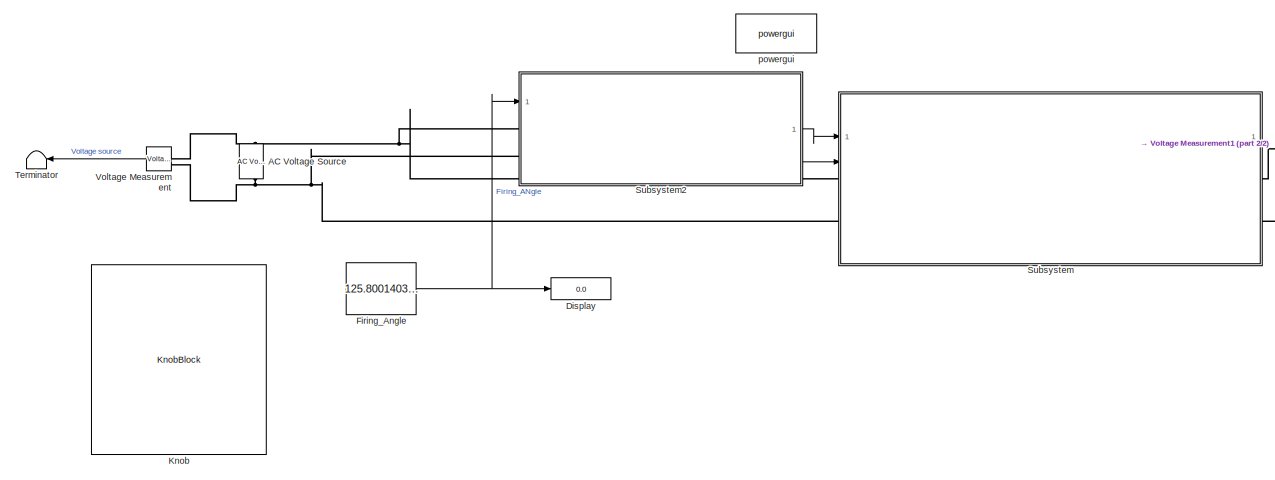
[diagram: root canvas - part 1/2, center side, full height]
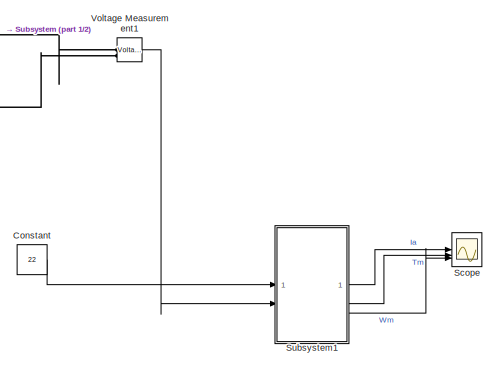
[diagram: root canvas - part 2/2, middle right region]
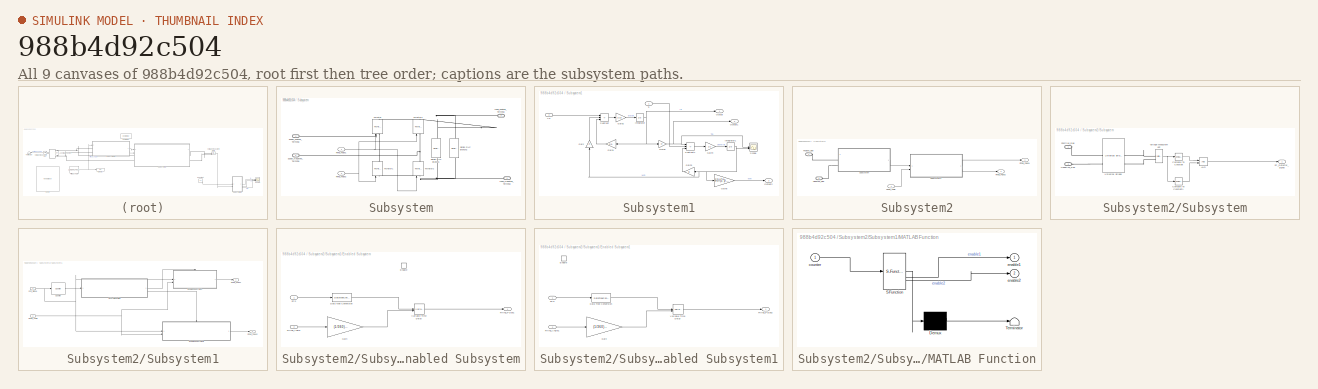
[diagram: thumbnail index - all 9 canvases of the model, root first then tree order]
MODEL slx_988b4d92c504
KIND model
CONFIG AbsTol = auto
CONFIG EnableMultiTasking = off
CONFIG FixedStep = 1e-3
CONFIG MaxStep = 1e-4
CONFIG MinStep = auto
CONFIG RelTol = 1e-3
CONFIG SampleTimeConstraint = Unconstrained
CONFIG SolverName = VariableStepAuto
CONFIG StartTime = 0.0
CONFIG StopTime = 2
WORKSPACE source: mxarray member
WORKSPACE Vm = 311.126983722
BLOCK [Reference] AC Voltage Source  REF=spsACVoltageSourceLib/AC Voltage Source
  LibrarySourceBlock = sps_lib/Sources/AC Voltage Source
  SourceBlock = spsACVoltageSourceLib/AC Voltage Source
  SourceType = AC Voltage Source
BLOCK [Constant] Constant
  Value = 22
BLOCK [Display] Display
  Decimation = 1
BLOCK [Constant] Firing_Angle
  Value = 125.8001403808594
BLOCK [KnobBlock] Knob
  ScaleMax = 180
BLOCK [Scope] Scope
  Floating = off
  NumInputPorts = 3
  ScopeSpecificationString = Simulink.scopes.TimeScopeBlockCfg('CurrentConfiguration', extmgr.ConfigurationSet(extmgr.Configuration('Core','General UI',true),extmgr.Configuration('Core','Source UI',true),extmgr.Configuration('Sources','WiredSimulink',true,'DataLoggingVariableName','ScopeData1'),extmgr.Configuration('Visuals','Time Domain',true,'SerializedDisplays',{struct('MinYLimReal','-11.45574','MaxYLimReal','103.10169','Y...<+2816ch>
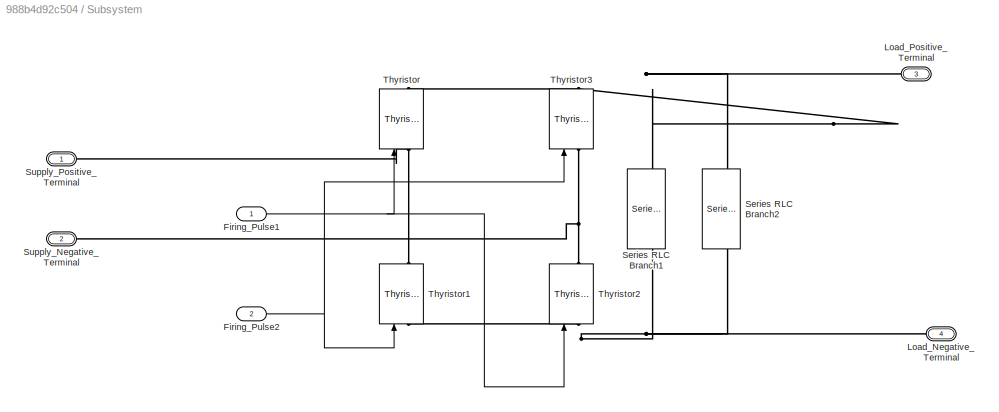
BLOCK [SubSystem] Subsystem
BLOCK [Inport] Subsystem/Firing_Pulse1
BLOCK [Inport] Subsystem/Firing_Pulse2
  Port = 2
BLOCK [PMIOPort] Subsystem/Load_Negative_Terminal
  Port = 4
  Side = Right
BLOCK [PMIOPort] Subsystem/Load_Positive_Terminal
  Port = 3
  Side = Right
BLOCK [Reference] Subsystem/Series RLC Branch1  REF=spsSeriesRLCBranchLib/Series RLC Branch
  LibrarySourceBlock = sps_lib/Passives/Series RLC Branch
  NameLocation = left
  SourceBlock = spsSeriesRLCBranchLib/Series RLC Branch
  SourceType = Series RLC Branch
BLOCK [Reference] Subsystem/Series RLC Branch2  REF=spsSeriesRLCBranchLib/Series RLC Branch
  LibrarySourceBlock = sps_lib/Passives/Series RLC Branch
  NameLocation = left
  SourceBlock = spsSeriesRLCBranchLib/Series RLC Branch
  SourceType = Series RLC Branch
BLOCK [PMIOPort] Subsystem/Supply_Negative_Terminal
  Port = 2
  Side = Left
BLOCK [PMIOPort] Subsystem/Supply_Positive_Terminal
  Side = Left
BLOCK [Reference] Subsystem/Thyristor  REF=spsThyristorLib/Thyristor
  LibrarySourceBlock = sps_lib/Power Electronics/Thyristor
  NameLocation = right
  SourceBlock = spsThyristorLib/Thyristor
  SourceType = Thyristor
BLOCK [Reference] Subsystem/Thyristor1  REF=spsThyristorLib/Thyristor
  LibrarySourceBlock = sps_lib/Power Electronics/Thyristor
  NameLocation = right
  SourceBlock = spsThyristorLib/Thyristor
  SourceType = Thyristor
BLOCK [Reference] Subsystem/Thyristor2  REF=spsThyristorLib/Thyristor
  LibrarySourceBlock = sps_lib/Power Electronics/Thyristor
  NameLocation = right
  SourceBlock = spsThyristorLib/Thyristor
  SourceType = Thyristor
BLOCK [Reference] Subsystem/Thyristor3  REF=spsThyristorLib/Thyristor
  LibrarySourceBlock = sps_lib/Power Electronics/Thyristor
  NameLocation = right
  SourceBlock = spsThyristorLib/Thyristor
  SourceType = Thyristor
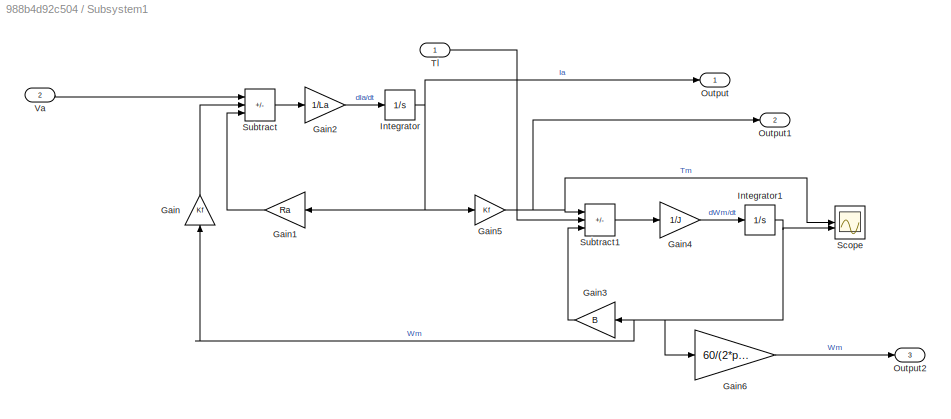
BLOCK [SubSystem] Subsystem1
BLOCK [Gain] Subsystem1/Gain
  Gain = Kf
  NameLocation = right
BLOCK [Gain] Subsystem1/Gain1
  Gain = Ra
  NameLocation = top
BLOCK [Gain] Subsystem1/Gain2
  Gain = 1/La
  NameLocation = top
BLOCK [Gain] Subsystem1/Gain3
  Gain = B
  NameLocation = top
BLOCK [Gain] Subsystem1/Gain4
  Gain = 1/J
  NameLocation = top
BLOCK [Gain] Subsystem1/Gain5
  Gain = Kf
BLOCK [Gain] Subsystem1/Gain6
  Gain = 60/(2*pi)
BLOCK [Integrator] Subsystem1/Integrator
BLOCK [Integrator] Subsystem1/Integrator1
BLOCK [Outport] Subsystem1/Output
  IconDisplay = Signal name
BLOCK [Outport] Subsystem1/Output1
  IconDisplay = Signal name
  Port = 2
BLOCK [Outport] Subsystem1/Output2
  IconDisplay = Signal name
  Port = 3
BLOCK [Scope] Subsystem1/Scope
  Floating = off
  NumInputPorts = 2
  ScopeSpecificationString = Simulink.scopes.TimeScopeBlockCfg('CurrentConfiguration', extmgr.ConfigurationSet(extmgr.Configuration('Core','General UI',true),extmgr.Configuration('Core','Source UI',true),extmgr.Configuration('Sources','WiredSimulink',true),extmgr.Configuration('Visuals','Time Domain',true,'SerializedDisplays',{struct('MinYLimReal','-79.53017','MaxYLimReal','478.98219','YLabelReal','','MinYLimMag','0.00000','M...<+2094ch>
BLOCK [Sum] Subsystem1/Subtract
  IconShape = rectangular
  Inputs = +--
BLOCK [Sum] Subsystem1/Subtract1
  IconShape = rectangular
  Inputs = +--
BLOCK [Inport] Subsystem1/Tl
BLOCK [Inport] Subsystem1/Va
  Port = 2
BLOCK [SubSystem] Subsystem2
BLOCK [Inport] Subsystem2/Firing_Angle
BLOCK [Outport] Subsystem2/Firing_Pulse1
BLOCK [Outport] Subsystem2/Firing_Pulse2
  Port = 2
BLOCK [PMIOPort] Subsystem2/Negative_side
  Port = 2
  Side = Left
BLOCK [PMIOPort] Subsystem2/Positive_side
  Side = Left
BLOCK [SubSystem] Subsystem2/Subsystem
BLOCK [Logic] Subsystem2/Subsystem/AND
  AllPortsSameDT = off
  IconShape = distinctive
  OutDataTypeStr = boolean
BLOCK [Reference] Subsystem2/Subsystem/Compare To Constant  REF=simulink/Logic and Bit
Operations/Compare
To Constant
  SourceBlock = simulink/Logic and Bit\nOperations/Compare\nTo Constant
  SourceType = Compare To Constant
BLOCK [Reference] Subsystem2/Subsystem/Compare To Constant1  REF=simulink/Logic and Bit
Operations/Compare
To Constant
  SourceBlock = simulink/Logic and Bit\nOperations/Compare\nTo Constant
  SourceType = Compare To Constant
BLOCK [PMIOPort] Subsystem2/Subsystem/Negative_side
  Port = 2
  Side = Left
BLOCK [PMIOPort] Subsystem2/Subsystem/Positive_side
  Side = Left
BLOCK [Reference] Subsystem2/Subsystem/Universal Bridge  REF=spsUniversalBridgeLib/Universal Bridge
  LibrarySourceBlock = sps_lib/Power Electronics/Universal Bridge
  SourceBlock = spsUniversalBridgeLib/Universal Bridge
  SourceType = Universal Bridge
BLOCK [Reference] Subsystem2/Subsystem/Voltage Measurement  REF=spsVoltageMeasurementLib/Voltage Measurement
  LibrarySourceBlock = sps_lib/Sensors and Measurements/Voltage Measurement
  SourceBlock = spsVoltageMeasurementLib/Voltage Measurement
  SourceType = Voltage Measurement
  UserDataPersistent = on
BLOCK [Outport] Subsystem2/Subsystem/ZC_Detector_Signal
BLOCK [SubSystem] Subsystem2/Subsystem1
BLOCK [Reference] Subsystem2/Subsystem1/Counter  REF=dspswit3/Counter
  SourceBlock = dspswit3/Counter
  SourceType = Counter
BLOCK [SubSystem] Subsystem2/Subsystem1/Enabled Subsystem
  TreatAsAtomicUnit = on
BLOCK [DataTypeConversion] Subsystem2/Subsystem1/Enabled Subsystem/Data Type Conversion
  OutDataTypeStr = double
  RndMeth = Floor
  SaturateOnIntegerOverflow = off
BLOCK [EnablePort] Subsystem2/Subsystem1/Enabled Subsystem/Enable
BLOCK [Inport] Subsystem2/Subsystem1/Enabled Subsystem/Firing_Angle
  Port = 2
BLOCK [Outport] Subsystem2/Subsystem1/Enabled Subsystem/Firing_Pulse1
BLOCK [Gain] Subsystem2/Subsystem1/Enabled Subsystem/Gain
  Gain = (1/360) *0.02
BLOCK [VariableTransportDelay] Subsystem2/Subsystem1/Enabled Subsystem/Variable Time Delay
  MaximumDelay = 10
BLOCK [Inport] Subsystem2/Subsystem1/Enabled Subsystem/ZCS
BLOCK [SubSystem] Subsystem2/Subsystem1/Enabled Subsystem1
  TreatAsAtomicUnit = on
BLOCK [DataTypeConversion] Subsystem2/Subsystem1/Enabled Subsystem1/Data Type Conversion
  OutDataTypeStr = double
  RndMeth = Floor
  SaturateOnIntegerOverflow = off
BLOCK [EnablePort] Subsystem2/Subsystem1/Enabled Subsystem1/Enable
BLOCK [Inport] Subsystem2/Subsystem1/Enabled Subsystem1/Firing_Angle1
  Port = 2
BLOCK [Outport] Subsystem2/Subsystem1/Enabled Subsystem1/Firing_Pulse2
BLOCK [Gain] Subsystem2/Subsystem1/Enabled Subsystem1/Gain
  Gain = (1/360) *0.02
BLOCK [VariableTransportDelay] Subsystem2/Subsystem1/Enabled Subsystem1/Variable Time Delay
  MaximumDelay = 10
BLOCK [Inport] Subsystem2/Subsystem1/Enabled Subsystem1/ZCS
BLOCK [Inport] Subsystem2/Subsystem1/Firing_Angle
  Port = 2
BLOCK [Outport] Subsystem2/Subsystem1/Firing_Pulse1
BLOCK [Outport] Subsystem2/Subsystem1/Firing_Pulse2
  Port = 2
BLOCK [SubSystem] Subsystem2/Subsystem1/MATLAB Function
  ErrorFcn = Stateflow.Translate.translate
  PermitHierarchicalResolution = ExplicitOnly
  SFBlockType = MATLAB Function
  TreatAsAtomicUnit = on
BLOCK [Demux] Subsystem2/Subsystem1/MATLAB Function/ Demux 
  Outputs = 1
BLOCK [S-Function] Subsystem2/Subsystem1/MATLAB Function/ SFunction 
  EnableBusSupport = on
  FunctionName = sf_sfun
  PortCounts = [1 3]
  SFcnIsStateOwnerBlock = off
  SFunctionDeploymentMode = off
  Tag = Stateflow S-Function 2
BLOCK [Terminator] Subsystem2/Subsystem1/MATLAB Function/ Terminator 
BLOCK [Inport] Subsystem2/Subsystem1/MATLAB Function/counter
BLOCK [Outport] Subsystem2/Subsystem1/MATLAB Function/enable1
BLOCK [Outport] Subsystem2/Subsystem1/MATLAB Function/enable2
  Port = 2
BLOCK [Inport] Subsystem2/Subsystem1/ZCS_Signal
BLOCK [Terminator] Terminator
BLOCK [Reference] Voltage Measurement  REF=spsVoltageMeasurementLib/Voltage Measurement
  LibrarySourceBlock = sps_lib/Sensors and Measurements/Voltage Measurement
  SourceBlock = spsVoltageMeasurementLib/Voltage Measurement
  SourceType = Voltage Measurement
  UserDataPersistent = on
BLOCK [Reference] Voltage Measurement1  REF=spsVoltageMeasurementLib/Voltage Measurement
  LibrarySourceBlock = sps_lib/Sensors and Measurements/Voltage Measurement
  SourceBlock = spsVoltageMeasurementLib/Voltage Measurement
  SourceType = Voltage Measurement
  UserDataPersistent = on
BLOCK [Reference] powergui  REF=sps_lib/powergui
  LibrarySourceBlock = sps_lib/powergui
  Priority = 1
  SourceBlock = sps_lib/powergui
  SourceType = PSB option menu block
LINE Constant:1 -> Subsystem1:1
NET Firing_Angle:1 -> Display:1, Subsystem2:1
NET Subsystem/Firing_Pulse1:1 -> Subsystem/Thyristor2:1, Subsystem/Thyristor:1
NET Subsystem/Firing_Pulse2:1 -> Subsystem/Thyristor1:1, Subsystem/Thyristor3:1
LINE Subsystem1/Gain1:1 -> Subsystem1/Subtract:3
LINE Subsystem1/Gain2:1 -> Subsystem1/Integrator:1
LINE Subsystem1/Gain3:1 -> Subsystem1/Subtract1:3
LINE Subsystem1/Gain4:1 -> Subsystem1/Integrator1:1
NET Subsystem1/Gain5:1 -> Subsystem1/Output1:1, Subsystem1/Scope:1, Subsystem1/Subtract1:1
LINE Subsystem1/Gain6:1 -> Subsystem1/Output2:1
LINE Subsystem1/Gain:1 -> Subsystem1/Subtract:2
NET Subsystem1/Integrator1:1 -> Subsystem1/Gain3:1, Subsystem1/Gain6:1, Subsystem1/Gain:1, Subsystem1/Scope:2
NET Subsystem1/Integrator:1 -> Subsystem1/Gain1:1, Subsystem1/Gain5:1, Subsystem1/Output:1
LINE Subsystem1/Subtract1:1 -> Subsystem1/Gain4:1
LINE Subsystem1/Subtract:1 -> Subsystem1/Gain2:1
LINE Subsystem1/Tl:1 -> Subsystem1/Subtract1:2
LINE Subsystem1/Va:1 -> Subsystem1/Subtract:1
LINE Subsystem1:1 -> Scope:1
LINE Subsystem1:2 -> Scope:2
LINE Subsystem1:3 -> Scope:3
LINE Subsystem2/Firing_Angle:1 -> Subsystem2/Subsystem1:2
LINE Subsystem2/Subsystem/AND:1 -> Subsystem2/Subsystem/ZC_Detector_Signal:1
LINE Subsystem2/Subsystem/Compare To Constant1:1 -> Subsystem2/Subsystem/AND:2
LINE Subsystem2/Subsystem/Compare To Constant:1 -> Subsystem2/Subsystem/AND:1
NET Subsystem2/Subsystem/Voltage Measurement:1 -> Subsystem2/Subsystem/Compare To Constant1:1, Subsystem2/Subsystem/Compare To Constant:1
LINE Subsystem2/Subsystem1/Counter:1 -> Subsystem2/Subsystem1/MATLAB Function:1
LINE Subsystem2/Subsystem1/Enabled Subsystem/Data Type Conversion:1 -> Subsystem2/Subsystem1/Enabled Subsystem/Variable Time Delay:1
LINE Subsystem2/Subsystem1/Enabled Subsystem/Firing_Angle:1 -> Subsystem2/Subsystem1/Enabled Subsystem/Gain:1
LINE Subsystem2/Subsystem1/Enabled Subsystem/Gain:1 -> Subsystem2/Subsystem1/Enabled Subsystem/Variable Time Delay:2
LINE Subsystem2/Subsystem1/Enabled Subsystem/Variable Time Delay:1 -> Subsystem2/Subsystem1/Enabled Subsystem/Firing_Pulse1:1
LINE Subsystem2/Subsystem1/Enabled Subsystem/ZCS:1 -> Subsystem2/Subsystem1/Enabled Subsystem/Data Type Conversion:1
LINE Subsystem2/Subsystem1/Enabled Subsystem1/Data Type Conversion:1 -> Subsystem2/Subsystem1/Enabled Subsystem1/Variable Time Delay:1
LINE Subsystem2/Subsystem1/Enabled Subsystem1/Firing_Angle1:1 -> Subsystem2/Subsystem1/Enabled Subsystem1/Gain:1
LINE Subsystem2/Subsystem1/Enabled Subsystem1/Gain:1 -> Subsystem2/Subsystem1/Enabled Subsystem1/Variable Time Delay:2
LINE Subsystem2/Subsystem1/Enabled Subsystem1/Variable Time Delay:1 -> Subsystem2/Subsystem1/Enabled Subsystem1/Firing_Pulse2:1
LINE Subsystem2/Subsystem1/Enabled Subsystem1/ZCS:1 -> Subsystem2/Subsystem1/Enabled Subsystem1/Data Type Conversion:1
LINE Subsystem2/Subsystem1/Enabled Subsystem1:1 -> Subsystem2/Subsystem1/Firing_Pulse2:1
LINE Subsystem2/Subsystem1/Enabled Subsystem:1 -> Subsystem2/Subsystem1/Firing_Pulse1:1
NET Subsystem2/Subsystem1/Firing_Angle:1 -> Subsystem2/Subsystem1/Enabled Subsystem1:2, Subsystem2/Subsystem1/Enabled Subsystem:2
LINE Subsystem2/Subsystem1/MATLAB Function:1 -> Subsystem2/Subsystem1/Enabled Subsystem:enable
LINE Subsystem2/Subsystem1/MATLAB Function:2 -> Subsystem2/Subsystem1/Enabled Subsystem1:enable
NET Subsystem2/Subsystem1/ZCS_Signal:1 -> Subsystem2/Subsystem1/Counter:1, Subsystem2/Subsystem1/Enabled Subsystem1:1, Subsystem2/Subsystem1/Enabled Subsystem:1
LINE Subsystem2/Subsystem1:1 -> Subsystem2/Firing_Pulse1:1
LINE Subsystem2/Subsystem1:2 -> Subsystem2/Firing_Pulse2:1
LINE Subsystem2/Subsystem:1 -> Subsystem2/Subsystem1:1
LINE Subsystem2:1 -> Subsystem:1
LINE Subsystem2:2 -> Subsystem:2
LINE Voltage Measurement1:1 -> Subsystem1:2
LINE Voltage Measurement:1 -> Terminator:1
PNET net1: AC Voltage Source:LConn1 -- Subsystem2:LConn2 -- Subsystem:LConn2 -- Voltage Measurement:LConn2
PNET net2: AC Voltage Source:RConn1 -- Subsystem2:LConn1 -- Subsystem:LConn1 -- Voltage Measurement:LConn1
PNET net3: Subsystem/Load_Negative_Terminal:RConn1 -- Subsystem/Series RLC Branch1:RConn1 -- Subsystem/Series RLC Branch2:RConn1 -- Subsystem/Thyristor1:LConn1 -- Subsystem/Thyristor2:LConn1
PNET net4: Subsystem/Load_Positive_Terminal:RConn1 -- Subsystem/Series RLC Branch1:LConn1 -- Subsystem/Series RLC Branch2:LConn1 -- Subsystem/Thyristor3:RConn1 -- Subsystem/Thyristor:RConn1
PNET net5: Subsystem/Supply_Negative_Terminal:RConn1 -- Subsystem/Thyristor2:RConn1 -- Subsystem/Thyristor3:LConn1
PNET net6: Subsystem/Supply_Positive_Terminal:RConn1 -- Subsystem/Thyristor1:RConn1 -- Subsystem/Thyristor:LConn1
PLINE Subsystem2/Negative_side:RConn1 -- Subsystem2/Subsystem:LConn2
PLINE Subsystem2/Positive_side:RConn1 -- Subsystem2/Subsystem:LConn1
PLINE Subsystem2/Subsystem/Negative_side:RConn1 -- Subsystem2/Subsystem/Universal Bridge:LConn2
PLINE Subsystem2/Subsystem/Positive_side:RConn1 -- Subsystem2/Subsystem/Universal Bridge:LConn1
PLINE Subsystem2/Subsystem/Universal Bridge:RConn1 -- Subsystem2/Subsystem/Voltage Measurement:LConn1
PLINE Subsystem2/Subsystem/Universal Bridge:RConn2 -- Subsystem2/Subsystem/Voltage Measurement:LConn2
PLINE Subsystem:RConn1 -- Voltage Measurement1:LConn1
PLINE Subsystem:RConn2 -- Voltage Measurement1:LConn2
note: NET lines group one-source signal fan-out (src -> all destinations, sorted); 1:1 wires keep LINE; PNET lines group multi-terminal physical nets as a canonical sorted terminal list (undirected conserving connections); 2-terminal nets keep the pairwise PLINE form
CHART Subsystem2/Subsystem1/MATLAB Function states=1 transitions=1
  STATE_LABEL 'eML_blk_kernel()'
  STATE_LABEL 'SCRIPT:\nfunction [enable1 , enable2] = Pulse_Generator(counter)\nenable1 = 0;\nenable2 = 0;\nif (mod(counter , 2 ) == 0)\n    enable1 = 1;\n    enable2 = 0;\nend\n\n\nif (mod(counter , 2 ) == 1)\n    enable1 = 0;\n    enable2 = 1;\nend\n\nend'
CHART  states=0 transitions=0
